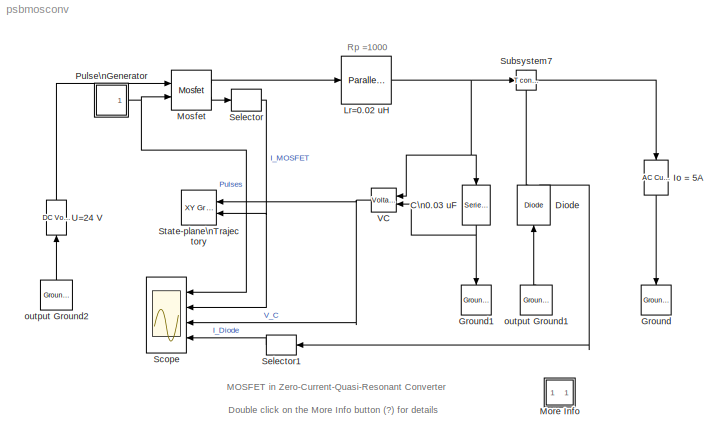
MODEL psbmosconv
KIND model
BLOCK [Reference] C\n0.03 uF  REF=powerlib2/Elements/Series RLC Branch
  PSBOutputType = 1
  Ports = [1, 1]
  SourceBlock = powerlib2/Elements/Series RLC Branch
  SourceType = Series RLC Branch
  Tag = PoWeRsYsTeMbLoCk
  a = 0
  b = 0
  c = 0.03e-6
  mesure = None
BLOCK [Reference] Diode  REF=powerlib2/Power\nElectronics/Diode
  Cs = 0
  IC = 5
  Lon = 1e-10
  PSBOutputType = 10
  Ports = [1, 2]
  Ron = 0.05
  Rs = inf
  SourceBlock = powerlib2/Power\nElectronics/Diode
  SourceType = Diode
  Tag = PoWeRsYsTeMbLoCk
  Vf = 0
BLOCK [Reference] Ground  REF=powerlib2/Connectors/Ground (input)
  Ports = [1]
  SourceBlock = powerlib2/Connectors/Ground (input)
  SourceType = Ground
  Tag = PoWeRsYsTeMbLoCk
BLOCK [Reference] Ground1  REF=powerlib2/Connectors/Ground (input)
  Ports = [1]
  SourceBlock = powerlib2/Connectors/Ground (input)
  SourceType = Ground
  Tag = PoWeRsYsTeMbLoCk
BLOCK [Reference] Io = 5A  REF=powerlib2/Electrical\nSources/AC Current Source
  A = 5
  F = 0.01
  P = 90
  PSBOutputType = 1
  Ports = [1, 1]
  SourceBlock = powerlib2/Electrical\nSources/AC Current Source
  SourceType = AC Current Source
  Tag = PoWeRsYsTeMbLoCk
  mesure = None
  stime = 0
BLOCK [Reference] Lr=0.02 uH  REF=powerlib2/Elements/Parallel RLC Branch
  PSBOutputType = 1
  Ports = [1, 1]
  SourceBlock = powerlib2/Elements/Parallel RLC Branch
  SourceType = Parallel RLC Branch
  Tag = PoWeRsYsTeMbLoCk
  a = 1e3
  b = 0.02e-6
  c = 0
  mesure = None
BLOCK [SubSystem] More Info
  MaskDisplay = disp('?')
  MaskIconFrame = on
  MaskIconOpaque = on
  MaskIconRotate = none
  MaskIconUnits = autoscale
  MinAlgLoopOccurrences = off
  Ports = []
  RTWSystemCode = Auto
  TreatAsAtomicUnit = off
BLOCK [Reference] Mosfet  REF=powerlib2/Power\nElectronics/Mosfet
  Cs = 0
  IC = 0
  Lon = 1e-9
  PSBOutputType = 10
  Ports = [2, 2]
  Rd = 5e-5
  Ron = 5e-3
  Rs = inf
  SourceBlock = powerlib2/Power\nElectronics/Mosfet
  SourceType = Mosfet
  Tag = PoWeRsYsTeMbLoCk
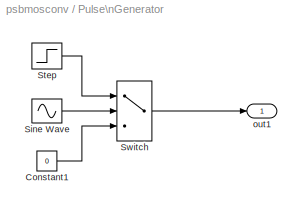
BLOCK [SubSystem] Pulse\nGenerator
  MaskCallbackString = |||
  MaskDescription = Pulse Generator
  MaskDisplay = plot(0,0,100,100,[95,90,90,75,75,60,60,45,45,30,30,15,15,5],[25,25,75,75,25,25,75,75,25,25,75,75,25,25]); \n                                                                                                          \n
  MaskEnableString = on,on,on,on
  MaskHelp = Pulse generator which ensures pulse transitions are hit. Provides a vector of pulses when the height is entered as a vector.  Unmask to see how it works.
  MaskIconFrame = on
  MaskIconOpaque = on
  MaskIconRotate = none
  MaskIconUnits = autoscale
  MaskInitialization = \n
  MaskPromptString = Period (secs):|Duty cycle (% of period):|Amplitude:|Start time:
  MaskStyleString = edit,edit,edit,edit
  MaskTabNameString = ,,,
  MaskToolTipString = on,on,on,on
  MaskTunableValueString = on,on,on,on
  MaskType = Pulse Generator
  MaskValueString = 0.5e-6|20|1|0
  MaskVarAliasString = ,,,
  MaskVariables = period=@1;duty=@2;amplitude=@3;start=@4;
  MaskVisibilityString = on,on,on,on
  MinAlgLoopOccurrences = off
  Ports = [0, 1]
  RTWSystemCode = Auto
  TreatAsAtomicUnit = off
BLOCK [Constant] Pulse\nGenerator/Constant1
  Value = 0
BLOCK [Sin] Pulse\nGenerator/Sine Wave
  Frequency = 2*pi./period
  Phase = -2*pi*(start./period + duty/200 - 1/4)
  Ports = [0, 1]
  SampleTime = 0
  SineType = Time based
BLOCK [Step] Pulse\nGenerator/Step
  After = amplitude
  SampleTime = 0
  Time = start
BLOCK [Switch] Pulse\nGenerator/Switch
  Threshold = sin(pi*(0.5 - duty/100))
BLOCK [Outport] Pulse\nGenerator/out1
  BusOutputAsStruct = off
  IconDisplay = Port number
  InitialOutput = 0
BLOCK [Scope] Scope
  DataFormat = Array
  NumInputPorts = 4
  Ports = [4]
  TimeRange = 2e-006
  YMax = 1~40~50~7.5
  YMin = 0~-30~-10~0
BLOCK [Selector] Selector
  InputPortWidth = 2
  Ports = [1, 1]
BLOCK [Selector] Selector1
  InputPortWidth = 2
  Ports = [1, 1]
BLOCK [Reference] State-plane\nTrajectory  REF=simulink/Sinks/XY Graph
  Ports = [2]
  SourceBlock = simulink/Sinks/XY Graph
  SourceType = XY scope.
  st = -1
  xmax = 50
  xmin = -5
  ymax = 50
  ymin = -50
BLOCK [Reference] Subsystem7  REF=powerlib2/Connectors/T connector
  PSBOutputType = 1
  Ports = [1, 1, 1]
  SourceBlock = powerlib2/Connectors/T connector
  SourceType = Bus Bar
  Tag = PoWeRsYsTeMbLoCk
BLOCK [Reference] U=24 V  REF=powerlib2/Electrical\nSources/DC Voltage Source
  PSBOutputType = 1
  Ports = [1, 1]
  SourceBlock = powerlib2/Electrical\nSources/DC Voltage Source
  SourceType = DC Voltage Source
  Tag = PoWeRsYsTeMbLoCk
  V = 24
  mesure = None
BLOCK [Reference] VC  REF=powerlib2/Measurements/Voltage Measurement
  OutputType = Magnitude
  PSBOutputType = 0
  PSBequivalent = 0
  PhasorSimulation = off
  Ports = [2, 1]
  SourceBlock = powerlib2/Measurements/Voltage Measurement
  SourceType = Voltage Measurement
  Tag = PoWeRsYsTeMmEaSuReMeNt
BLOCK [Reference] output Ground1  REF=powerlib2/Connectors/Ground (output)
  PSBOutputType = 1
  Ports = [0, 1]
  SourceBlock = powerlib2/Connectors/Ground (output)
  SourceType = Ground
  Tag = PoWeRsYsTeMbLoCk
BLOCK [Reference] output Ground2  REF=powerlib2/Connectors/Ground (output)
  PSBOutputType = 1
  Ports = [0, 1]
  SourceBlock = powerlib2/Connectors/Ground (output)
  SourceType = Ground
  Tag = PoWeRsYsTeMbLoCk
ANNOTATION (root): Double click on the More Info button (?) for details
ANNOTATION (root): MOSFET in Zero-Current-Quasi-Resonant Converter
ANNOTATION (root): Rp =1000
ANNOTATION More Info: Circuit Description
ANNOTATION More Info: K. Al-Haddad (Ecole de Technologie Superieure, Montreal)
ANNOTATION More Info: The MOSFET is used in a Zero-Current-Quasi-Resonant Switch (ZCQRS) converter topology.\nIn this topology, the device current flows through the resonant tank (Lr, Cr), thus causing zero \ncurrent turn off. The load is modeled as an ideal current source (Io). The MOSFET is driven \nby a 2 MHz pulse train with 20 % duty cycle.\n\nNote: In order to avoid cascading two current sources (MOSFET in series...<+74ch>
ANNOTATION More Info: This example illustrates use of MOSFET in the Zero-Current\nQuasi-Resonant Switch (ZCQRS) converter
NET C\n0.03 uF:1 -> Ground1:1, VC:2
LINE Diode:1 -> Subsystem7:enable
LINE Diode:2 -> Selector1:1
LINE Io = 5A:1 -> Ground:1
NET Lr=0.02 uH:1 -> C\n0.03 uF:1, Subsystem7:1, VC:1
LINE Mosfet:1 -> Lr=0.02 uH:1
LINE Mosfet:2 -> Selector:1
LINE Pulse\nGenerator/Constant1:1 -> Pulse\nGenerator/Switch:3
LINE Pulse\nGenerator/Sine Wave:1 -> Pulse\nGenerator/Switch:2
LINE Pulse\nGenerator/Step:1 -> Pulse\nGenerator/Switch:1
LINE Pulse\nGenerator/Switch:1 -> Pulse\nGenerator/out1:1
NET Pulse\nGenerator:1 -> Mosfet:2, Scope:1
LINE Selector1:1 -> Scope:4
NET Selector:1 -> Scope:2, State-plane\nTrajectory:2
LINE Subsystem7:1 -> Io = 5A:1
LINE U=24 V:1 -> Mosfet:1
NET VC:1 -> Scope:3, State-plane\nTrajectory:1
LINE output Ground1:1 -> Diode:1
LINE output Ground2:1 -> U=24 V:1
note: NET lines group one-source signal fan-out (src -> all destinations, sorted); 1:1 wires keep LINE
